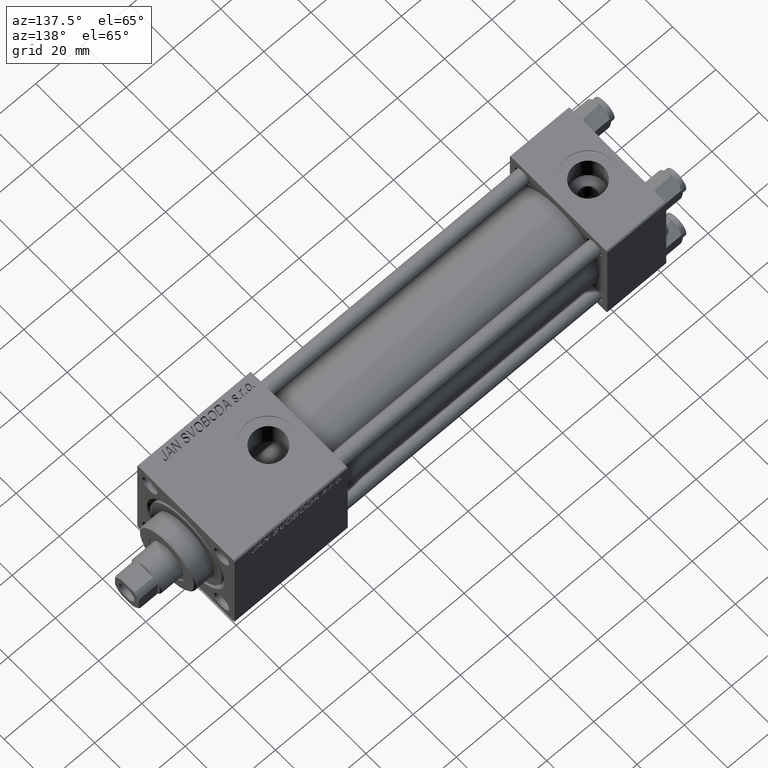
[diagram: clean part render]
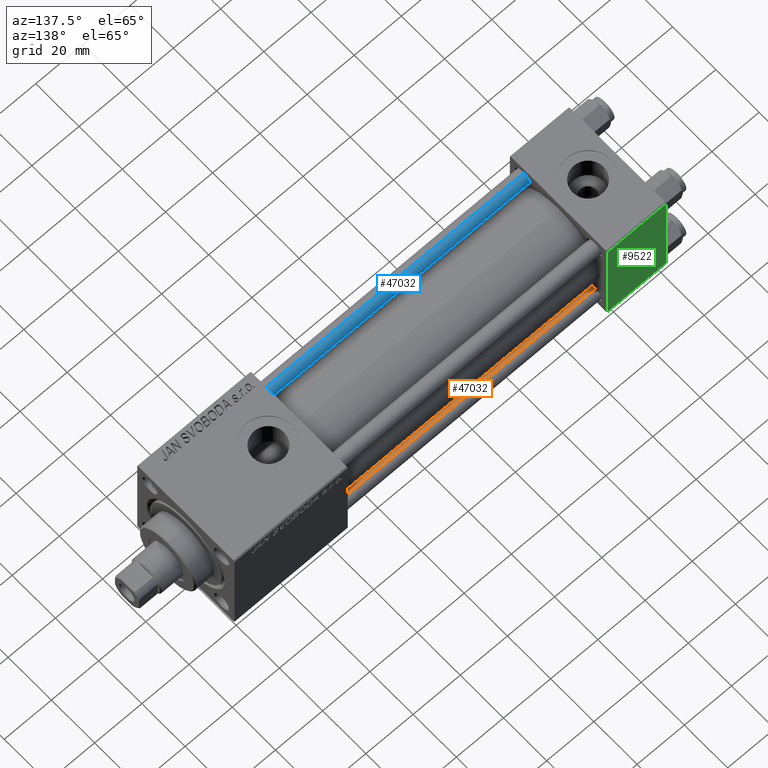
[diagram: same view with three faces highlighted in distinct colors, each labeled with its STEP entity id]
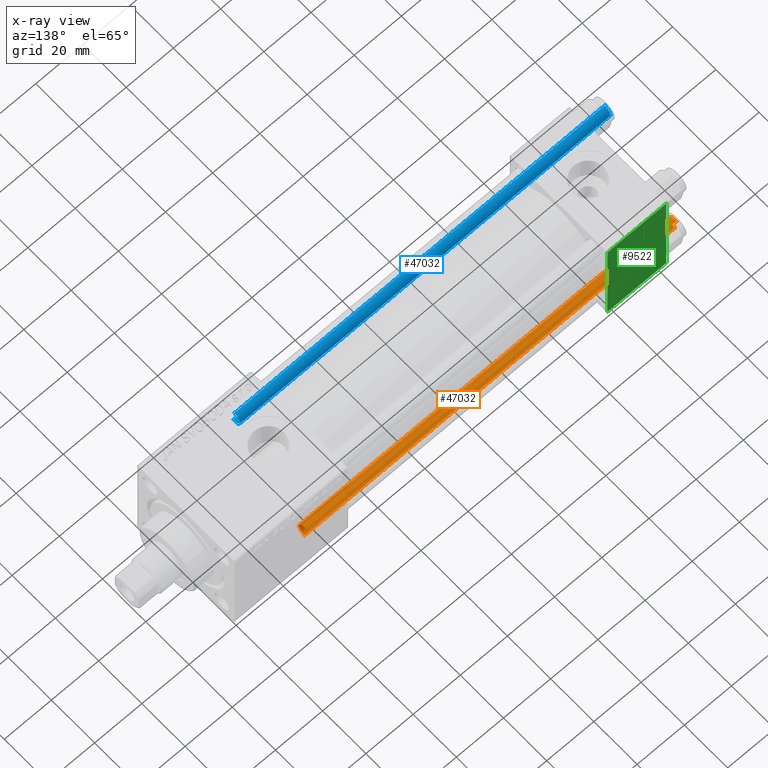
[diagram: x-ray of the same camera — body ghosted, the three highlighted faces saturated]
A machine part, auxiliary view with three faces highlighted in distinct colors.
The next image is the same camera in x-ray (body ghosted, the three faces saturated) — at least one of them is partly hidden behind the body in this view.
Their STEP definitions:

[orange] entity #47032 — the highlighted cylindrical surface (edge-blend (fillet) strip) has radius 3 mm, axis along (1, -0, 0).
#350 = CARTESIAN_POINT ( 'NONE',  ( 3.000000000000000444, 3.673940397442060361E-16, 0.5000000000000281997 ) ) ;
#1515 = VECTOR ( 'NONE', #41601, 1000.000000000000000 ) ;
#1567 = DIRECTION ( 'NONE',  ( 0.000000000000000000, 0.000000000000000000, -1.000000000000000000 ) ) ;
#2537 = LINE ( 'NONE', #14657, #38130 ) ;
#2676 = ORIENTED_EDGE ( 'NONE', *, *, #37643, .T. ) ;
#3323 = AXIS2_PLACEMENT_3D ( 'NONE', #38696, #14640, #22843 ) ;
#4229 = AXIS2_PLACEMENT_3D ( 'NONE', #22122, #1567, #38247 ) ;
#4467 = CYLINDRICAL_SURFACE ( 'NONE', #3323, 3.000000000000000444 ) ;
#8122 = VERTEX_POINT ( 'NONE', #34053 ) ;
#12789 = EDGE_CURVE ( 'NONE', #8122, #17825, #42820, .T. ) ;
#14640 = DIRECTION ( 'NONE',  ( -0.000000000000000000, -0.000000000000000000, -1.000000000000000000 ) ) ;
#14657 = CARTESIAN_POINT ( 'NONE',  ( -3.000000000000000444, 0.000000000000000000, 158.0000000000000000 ) ) ;
#14877 = DIRECTION ( 'NONE',  ( -0.000000000000000000, -0.000000000000000000, 1.000000000000000000 ) ) ;
#15319 = ORIENTED_EDGE ( 'NONE', *, *, #20529, .F. ) ;
#17825 = VERTEX_POINT ( 'NONE', #350 ) ;
#20529 = EDGE_CURVE ( 'NONE', #31613, #17825, #37626, .T. ) ;
#22034 = CARTESIAN_POINT ( 'NONE',  ( 3.000000000000000444, 3.673940397442060361E-16, 157.5000000000000000 ) ) ;
#22122 = CARTESIAN_POINT ( 'NONE',  ( 0.000000000000000000, 0.000000000000000000, 157.5000000000000000 ) ) ;
#22843 = DIRECTION ( 'NONE',  ( -1.000000000000000000, 0.000000000000000000, 0.000000000000000000 ) ) ;
#25826 = EDGE_LOOP ( 'NONE', ( #15319, #49391, #2676, #41819 ) ) ;
#30009 = DIRECTION ( 'NONE',  ( -0.000000000000000000, -0.000000000000000000, -1.000000000000000000 ) ) ;
#30282 = VERTEX_POINT ( 'NONE', #42499 ) ;
#30482 = CARTESIAN_POINT ( 'NONE',  ( 0.000000000000000000, 0.000000000000000000, 0.5000000000000281997 ) ) ;
#31613 = VERTEX_POINT ( 'NONE', #22034 ) ;
#34053 = CARTESIAN_POINT ( 'NONE',  ( -3.000000000000000444, 0.000000000000000000, 0.5000000000000281997 ) ) ;
#36894 = AXIS2_PLACEMENT_3D ( 'NONE', #30482, #14877, #46572 ) ;
#37626 = LINE ( 'NONE', #38407, #1515 ) ;
#37643 = EDGE_CURVE ( 'NONE', #30282, #8122, #2537, .T. ) ;
#38130 = VECTOR ( 'NONE', #30009, 1000.000000000000000 ) ;
#38247 = DIRECTION ( 'NONE',  ( 1.000000000000000000, 0.000000000000000000, 0.000000000000000000 ) ) ;
#38407 = CARTESIAN_POINT ( 'NONE',  ( 3.000000000000000444, 3.673940397442060361E-16, 158.0000000000000000 ) ) ;
#38696 = CARTESIAN_POINT ( 'NONE',  ( 0.000000000000000000, 0.000000000000000000, 158.0000000000000000 ) ) ;
#40654 = FACE_OUTER_BOUND ( 'NONE', #25826, .T. ) ;
#41601 = DIRECTION ( 'NONE',  ( -0.000000000000000000, -0.000000000000000000, -1.000000000000000000 ) ) ;
#41819 = ORIENTED_EDGE ( 'NONE', *, *, #12789, .T. ) ;
#42499 = CARTESIAN_POINT ( 'NONE',  ( -3.000000000000000444, 0.000000000000000000, 157.5000000000000000 ) ) ;
#42820 = CIRCLE ( 'NONE', #36894, 3.000000000000000444 ) ;
#44966 = CIRCLE ( 'NONE', #4229, 3.000000000000000444 ) ;
#46572 = DIRECTION ( 'NONE',  ( 1.000000000000000000, 0.000000000000000000, 0.000000000000000000 ) ) ;
#47032 = ADVANCED_FACE ( 'NONE', ( #40654 ), #4467, .T. ) ;
#48006 = EDGE_CURVE ( 'NONE', #31613, #30282, #44966, .T. ) ;
#49391 = ORIENTED_EDGE ( 'NONE', *, *, #48006, .T. ) ;

[blue] entity #47032 — the highlighted cylindrical surface (edge-blend (fillet) strip) has radius 3 mm, axis along (1, 0, -0).
#350 = CARTESIAN_POINT ( 'NONE',  ( 3.000000000000000444, 3.673940397442060361E-16, 0.5000000000000281997 ) ) ;
#1515 = VECTOR ( 'NONE', #41601, 1000.000000000000000 ) ;
#1567 = DIRECTION ( 'NONE',  ( 0.000000000000000000, 0.000000000000000000, -1.000000000000000000 ) ) ;
#2537 = LINE ( 'NONE', #14657, #38130 ) ;
#2676 = ORIENTED_EDGE ( 'NONE', *, *, #37643, .T. ) ;
#3323 = AXIS2_PLACEMENT_3D ( 'NONE', #38696, #14640, #22843 ) ;
#4229 = AXIS2_PLACEMENT_3D ( 'NONE', #22122, #1567, #38247 ) ;
#4467 = CYLINDRICAL_SURFACE ( 'NONE', #3323, 3.000000000000000444 ) ;
#8122 = VERTEX_POINT ( 'NONE', #34053 ) ;
#12789 = EDGE_CURVE ( 'NONE', #8122, #17825, #42820, .T. ) ;
#14640 = DIRECTION ( 'NONE',  ( -0.000000000000000000, -0.000000000000000000, -1.000000000000000000 ) ) ;
#14657 = CARTESIAN_POINT ( 'NONE',  ( -3.000000000000000444, 0.000000000000000000, 158.0000000000000000 ) ) ;
#14877 = DIRECTION ( 'NONE',  ( -0.000000000000000000, -0.000000000000000000, 1.000000000000000000 ) ) ;
#15319 = ORIENTED_EDGE ( 'NONE', *, *, #20529, .F. ) ;
#17825 = VERTEX_POINT ( 'NONE', #350 ) ;
#20529 = EDGE_CURVE ( 'NONE', #31613, #17825, #37626, .T. ) ;
#22034 = CARTESIAN_POINT ( 'NONE',  ( 3.000000000000000444, 3.673940397442060361E-16, 157.5000000000000000 ) ) ;
#22122 = CARTESIAN_POINT ( 'NONE',  ( 0.000000000000000000, 0.000000000000000000, 157.5000000000000000 ) ) ;
#22843 = DIRECTION ( 'NONE',  ( -1.000000000000000000, 0.000000000000000000, 0.000000000000000000 ) ) ;
#25826 = EDGE_LOOP ( 'NONE', ( #15319, #49391, #2676, #41819 ) ) ;
#30009 = DIRECTION ( 'NONE',  ( -0.000000000000000000, -0.000000000000000000, -1.000000000000000000 ) ) ;
#30282 = VERTEX_POINT ( 'NONE', #42499 ) ;
#30482 = CARTESIAN_POINT ( 'NONE',  ( 0.000000000000000000, 0.000000000000000000, 0.5000000000000281997 ) ) ;
#31613 = VERTEX_POINT ( 'NONE', #22034 ) ;
#34053 = CARTESIAN_POINT ( 'NONE',  ( -3.000000000000000444, 0.000000000000000000, 0.5000000000000281997 ) ) ;
#36894 = AXIS2_PLACEMENT_3D ( 'NONE', #30482, #14877, #46572 ) ;
#37626 = LINE ( 'NONE', #38407, #1515 ) ;
#37643 = EDGE_CURVE ( 'NONE', #30282, #8122, #2537, .T. ) ;
#38130 = VECTOR ( 'NONE', #30009, 1000.000000000000000 ) ;
#38247 = DIRECTION ( 'NONE',  ( 1.000000000000000000, 0.000000000000000000, 0.000000000000000000 ) ) ;
#38407 = CARTESIAN_POINT ( 'NONE',  ( 3.000000000000000444, 3.673940397442060361E-16, 158.0000000000000000 ) ) ;
#38696 = CARTESIAN_POINT ( 'NONE',  ( 0.000000000000000000, 0.000000000000000000, 158.0000000000000000 ) ) ;
#40654 = FACE_OUTER_BOUND ( 'NONE', #25826, .T. ) ;
#41601 = DIRECTION ( 'NONE',  ( -0.000000000000000000, -0.000000000000000000, -1.000000000000000000 ) ) ;
#41819 = ORIENTED_EDGE ( 'NONE', *, *, #12789, .T. ) ;
#42499 = CARTESIAN_POINT ( 'NONE',  ( -3.000000000000000444, 0.000000000000000000, 157.5000000000000000 ) ) ;
#42820 = CIRCLE ( 'NONE', #36894, 3.000000000000000444 ) ;
#44966 = CIRCLE ( 'NONE', #4229, 3.000000000000000444 ) ;
#46572 = DIRECTION ( 'NONE',  ( 1.000000000000000000, 0.000000000000000000, 0.000000000000000000 ) ) ;
#47032 = ADVANCED_FACE ( 'NONE', ( #40654 ), #4467, .T. ) ;
#48006 = EDGE_CURVE ( 'NONE', #31613, #30282, #44966, .T. ) ;
#49391 = ORIENTED_EDGE ( 'NONE', *, *, #48006, .T. ) ;

[green] entity #9522 — the highlighted planar face has unit normal (0, 1, 0).
#702 = DIRECTION ( 'NONE',  ( -1.000000000000000000, 0.000000000000000000, 0.000000000000000000 ) ) ;
#1132 = CARTESIAN_POINT ( 'NONE',  ( 25.00000000000000000, 22.50000000000000000, 21.99999999999999645 ) ) ;
#1396 = LINE ( 'NONE', #1132, #5498 ) ;
#1929 = CARTESIAN_POINT ( 'NONE',  ( 25.00000000000000000, 22.50000000000000000, -21.99999999999996803 ) ) ;
#2394 = DIRECTION ( 'NONE',  ( 0.000000000000000000, 0.000000000000000000, -1.000000000000000000 ) ) ;
#3087 = CARTESIAN_POINT ( 'NONE',  ( 25.00000000000000000, 22.50000000000000000, 22.50000000000000355 ) ) ;
#4904 = ORIENTED_EDGE ( 'NONE', *, *, #15286, .T. ) ;
#5498 = VECTOR ( 'NONE', #17203, 1000.000000000000000 ) ;
#6914 = EDGE_CURVE ( 'NONE', #25919, #50716, #1396, .T. ) ;
#7144 = LINE ( 'NONE', #46224, #40977 ) ;
#8565 = CARTESIAN_POINT ( 'NONE',  ( 25.00000000000000000, 22.50000000000000000, 21.99999999999999645 ) ) ;
#9522 = ADVANCED_FACE ( 'NONE', ( #15987 ), #44006, .T. ) ;
#10306 = CARTESIAN_POINT ( 'NONE',  ( 25.00000000000000000, 22.50000000000000000, 22.50000000000000355 ) ) ;
#11507 = CARTESIAN_POINT ( 'NONE',  ( 25.00000000000000000, 22.50000000000000000, -21.99999999999998224 ) ) ;
#15286 = EDGE_CURVE ( 'NONE', #31983, #38382, #47698, .T. ) ;
#15886 = CARTESIAN_POINT ( 'NONE',  ( 0.000000000000000000, 22.50000000000000000, 21.99999999999999645 ) ) ;
#15987 = FACE_OUTER_BOUND ( 'NONE', #46721, .T. ) ;
#16831 = EDGE_CURVE ( 'NONE', #25919, #38382, #7144, .T. ) ;
#17203 = DIRECTION ( 'NONE',  ( 1.000000000000000000, 0.000000000000000000, 0.000000000000000000 ) ) ;
#17572 = VECTOR ( 'NONE', #702, 1000.000000000000000 ) ;
#19048 = AXIS2_PLACEMENT_3D ( 'NONE', #3087, #47958, #27635 ) ;
#21269 = ORIENTED_EDGE ( 'NONE', *, *, #6914, .T. ) ;
#25919 = VERTEX_POINT ( 'NONE', #15886 ) ;
#27635 = DIRECTION ( 'NONE',  ( 0.000000000000000000, -0.000000000000000000, 1.000000000000000000 ) ) ;
#31983 = VERTEX_POINT ( 'NONE', #1929 ) ;
#33041 = CARTESIAN_POINT ( 'NONE',  ( 0.000000000000000000, 22.50000000000000000, -21.99999999999996803 ) ) ;
#34638 = VECTOR ( 'NONE', #48702, 1000.000000000000000 ) ;
#38382 = VERTEX_POINT ( 'NONE', #33041 ) ;
#40977 = VECTOR ( 'NONE', #2394, 1000.000000000000000 ) ;
#43183 = ORIENTED_EDGE ( 'NONE', *, *, #50712, .T. ) ;
#44006 = PLANE ( 'NONE',  #19048 ) ;
#46224 = CARTESIAN_POINT ( 'NONE',  ( 0.000000000000000000, 22.50000000000000000, 22.50000000000000355 ) ) ;
#46482 = LINE ( 'NONE', #10306, #34638 ) ;
#46721 = EDGE_LOOP ( 'NONE', ( #43183, #4904, #50316, #21269 ) ) ;
#47698 = LINE ( 'NONE', #11507, #17572 ) ;
#47958 = DIRECTION ( 'NONE',  ( -0.000000000000000000, 1.000000000000000000, 0.000000000000000000 ) ) ;
#48702 = DIRECTION ( 'NONE',  ( 0.000000000000000000, 0.000000000000000000, -1.000000000000000000 ) ) ;
#50316 = ORIENTED_EDGE ( 'NONE', *, *, #16831, .F. ) ;
#50712 = EDGE_CURVE ( 'NONE', #50716, #31983, #46482, .T. ) ;
#50716 = VERTEX_POINT ( 'NONE', #8565 ) ;